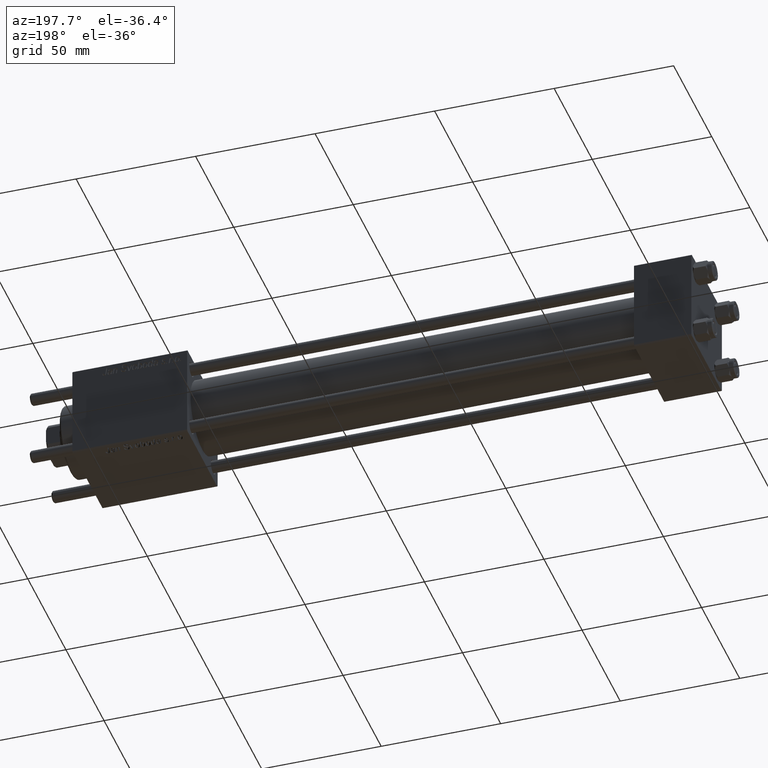
[diagram: clean part render]
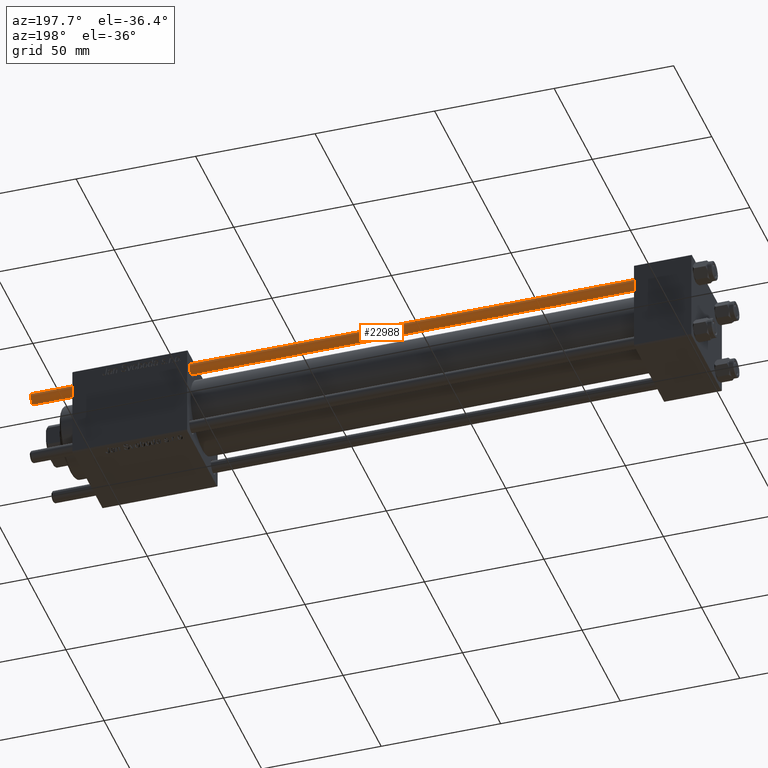
[diagram: same view with one face highlighted and labeled with its STEP entity id]
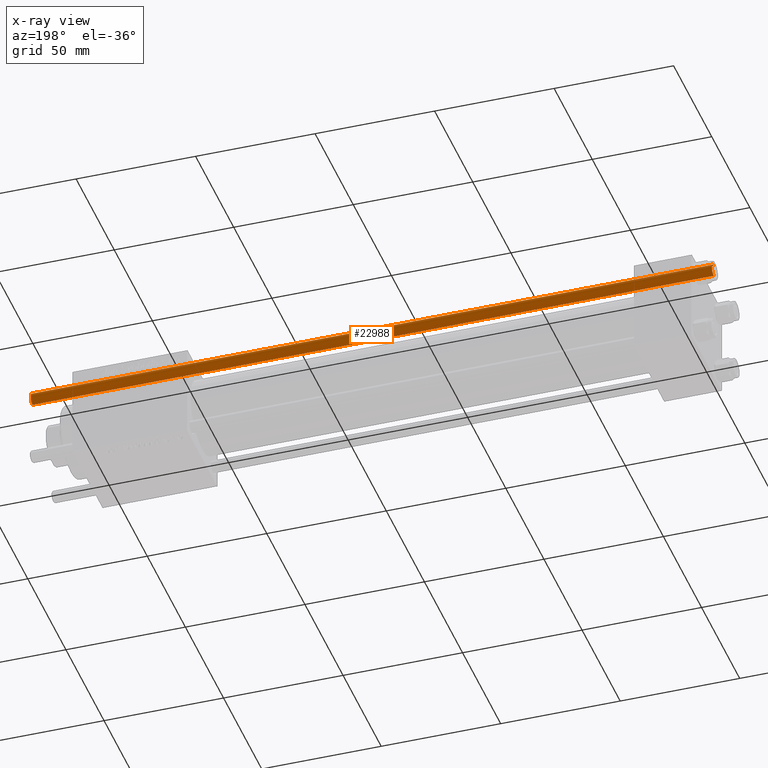
[diagram: x-ray of the same camera — body ghosted, the highlighted face saturated]
A machine part, auxiliary view. The second image highlights one B-rep face of the part: STEP entity #22988.
The next image is the same camera in x-ray: the body ghosted, the highlighted face saturated — about 0% of this face is hidden behind the body in this view.
In plain terms, the highlighted cylindrical surface (edge-blend (fillet) strip) has radius 2.5 mm, axis along (1, -0, -0).
Its self-contained STEP definition (entity closure, byte-faithful):
#1680 = ORIENTED_EDGE ( 'NONE', *, *, #30348, .T. ) ;
#3096 = EDGE_LOOP ( 'NONE', ( #1680, #35119, #34310, #26840 ) ) ;
#3310 = VERTEX_POINT ( 'NONE', #13347 ) ;
#4207 = CARTESIAN_POINT ( 'NONE',  ( 0.000000000000000000, 0.000000000000000000, 285.4999999999999432 ) ) ;
#4304 = DIRECTION ( 'NONE',  ( -0.000000000000000000, -0.000000000000000000, -1.000000000000000000 ) ) ;
#7945 = DIRECTION ( 'NONE',  ( 1.000000000000000000, 0.000000000000000000, 0.000000000000000000 ) ) ;
#11611 = CYLINDRICAL_SURFACE ( 'NONE', #47314, 2.500000000000000000 ) ;
#12872 = EDGE_CURVE ( 'NONE', #31475, #3310, #30114, .T. ) ;
#13347 = CARTESIAN_POINT ( 'NONE',  ( 2.500000000000000000, 3.061616997868383141E-16, 0.4999999999999449329 ) ) ;
#15015 = CARTESIAN_POINT ( 'NONE',  ( -2.500000000000000000, 0.000000000000000000, 286.0000000000000000 ) ) ;
#16388 = AXIS2_PLACEMENT_3D ( 'NONE', #4207, #29736, #7945 ) ;
#17315 = CIRCLE ( 'NONE', #16388, 2.500000000000000000 ) ;
#17710 = VECTOR ( 'NONE', #49994, 1000.000000000000000 ) ;
#19309 = LINE ( 'NONE', #15015, #17710 ) ;
#19645 = DIRECTION ( 'NONE',  ( -0.000000000000000000, -0.000000000000000000, -1.000000000000000000 ) ) ;
#19835 = VECTOR ( 'NONE', #4304, 1000.000000000000000 ) ;
#19935 = FACE_OUTER_BOUND ( 'NONE', #3096, .T. ) ;
#22338 = VERTEX_POINT ( 'NONE', #35906 ) ;
#22988 = ADVANCED_FACE ( 'NONE', ( #19935 ), #11611, .T. ) ;
#23952 = DIRECTION ( 'NONE',  ( -1.000000000000000000, 0.000000000000000000, 0.000000000000000000 ) ) ;
#26367 = CARTESIAN_POINT ( 'NONE',  ( 2.500000000000000000, 3.061616997868383141E-16, 286.0000000000000000 ) ) ;
#26840 = ORIENTED_EDGE ( 'NONE', *, *, #52038, .F. ) ;
#29100 = CARTESIAN_POINT ( 'NONE',  ( 0.000000000000000000, 0.000000000000000000, 286.0000000000000000 ) ) ;
#29736 = DIRECTION ( 'NONE',  ( 0.000000000000000000, 0.000000000000000000, -1.000000000000000000 ) ) ;
#30114 = LINE ( 'NONE', #26367, #19835 ) ;
#30348 = EDGE_CURVE ( 'NONE', #22338, #31475, #17315, .T. ) ;
#31475 = VERTEX_POINT ( 'NONE', #32324 ) ;
#31484 = DIRECTION ( 'NONE',  ( 1.000000000000000000, 0.000000000000000000, 0.000000000000000000 ) ) ;
#32324 = CARTESIAN_POINT ( 'NONE',  ( 2.500000000000000000, 3.061616997868383141E-16, 285.4999999999999432 ) ) ;
#32436 = EDGE_CURVE ( 'NONE', #3310, #36646, #35569, .T. ) ;
#34310 = ORIENTED_EDGE ( 'NONE', *, *, #32436, .T. ) ;
#35119 = ORIENTED_EDGE ( 'NONE', *, *, #12872, .T. ) ;
#35569 = CIRCLE ( 'NONE', #40151, 2.500000000000000000 ) ;
#35906 = CARTESIAN_POINT ( 'NONE',  ( -2.500000000000000000, 0.000000000000000000, 285.4999999999999432 ) ) ;
#36646 = VERTEX_POINT ( 'NONE', #49373 ) ;
#38719 = DIRECTION ( 'NONE',  ( -0.000000000000000000, -0.000000000000000000, 1.000000000000000000 ) ) ;
#39290 = CARTESIAN_POINT ( 'NONE',  ( 0.000000000000000000, 0.000000000000000000, 0.4999999999999449329 ) ) ;
#40151 = AXIS2_PLACEMENT_3D ( 'NONE', #39290, #38719, #31484 ) ;
#47314 = AXIS2_PLACEMENT_3D ( 'NONE', #29100, #19645, #23952 ) ;
#49373 = CARTESIAN_POINT ( 'NONE',  ( -2.500000000000000000, 0.000000000000000000, 0.4999999999999449329 ) ) ;
#49994 = DIRECTION ( 'NONE',  ( -0.000000000000000000, -0.000000000000000000, -1.000000000000000000 ) ) ;
#52038 = EDGE_CURVE ( 'NONE', #22338, #36646, #19309, .T. ) ;